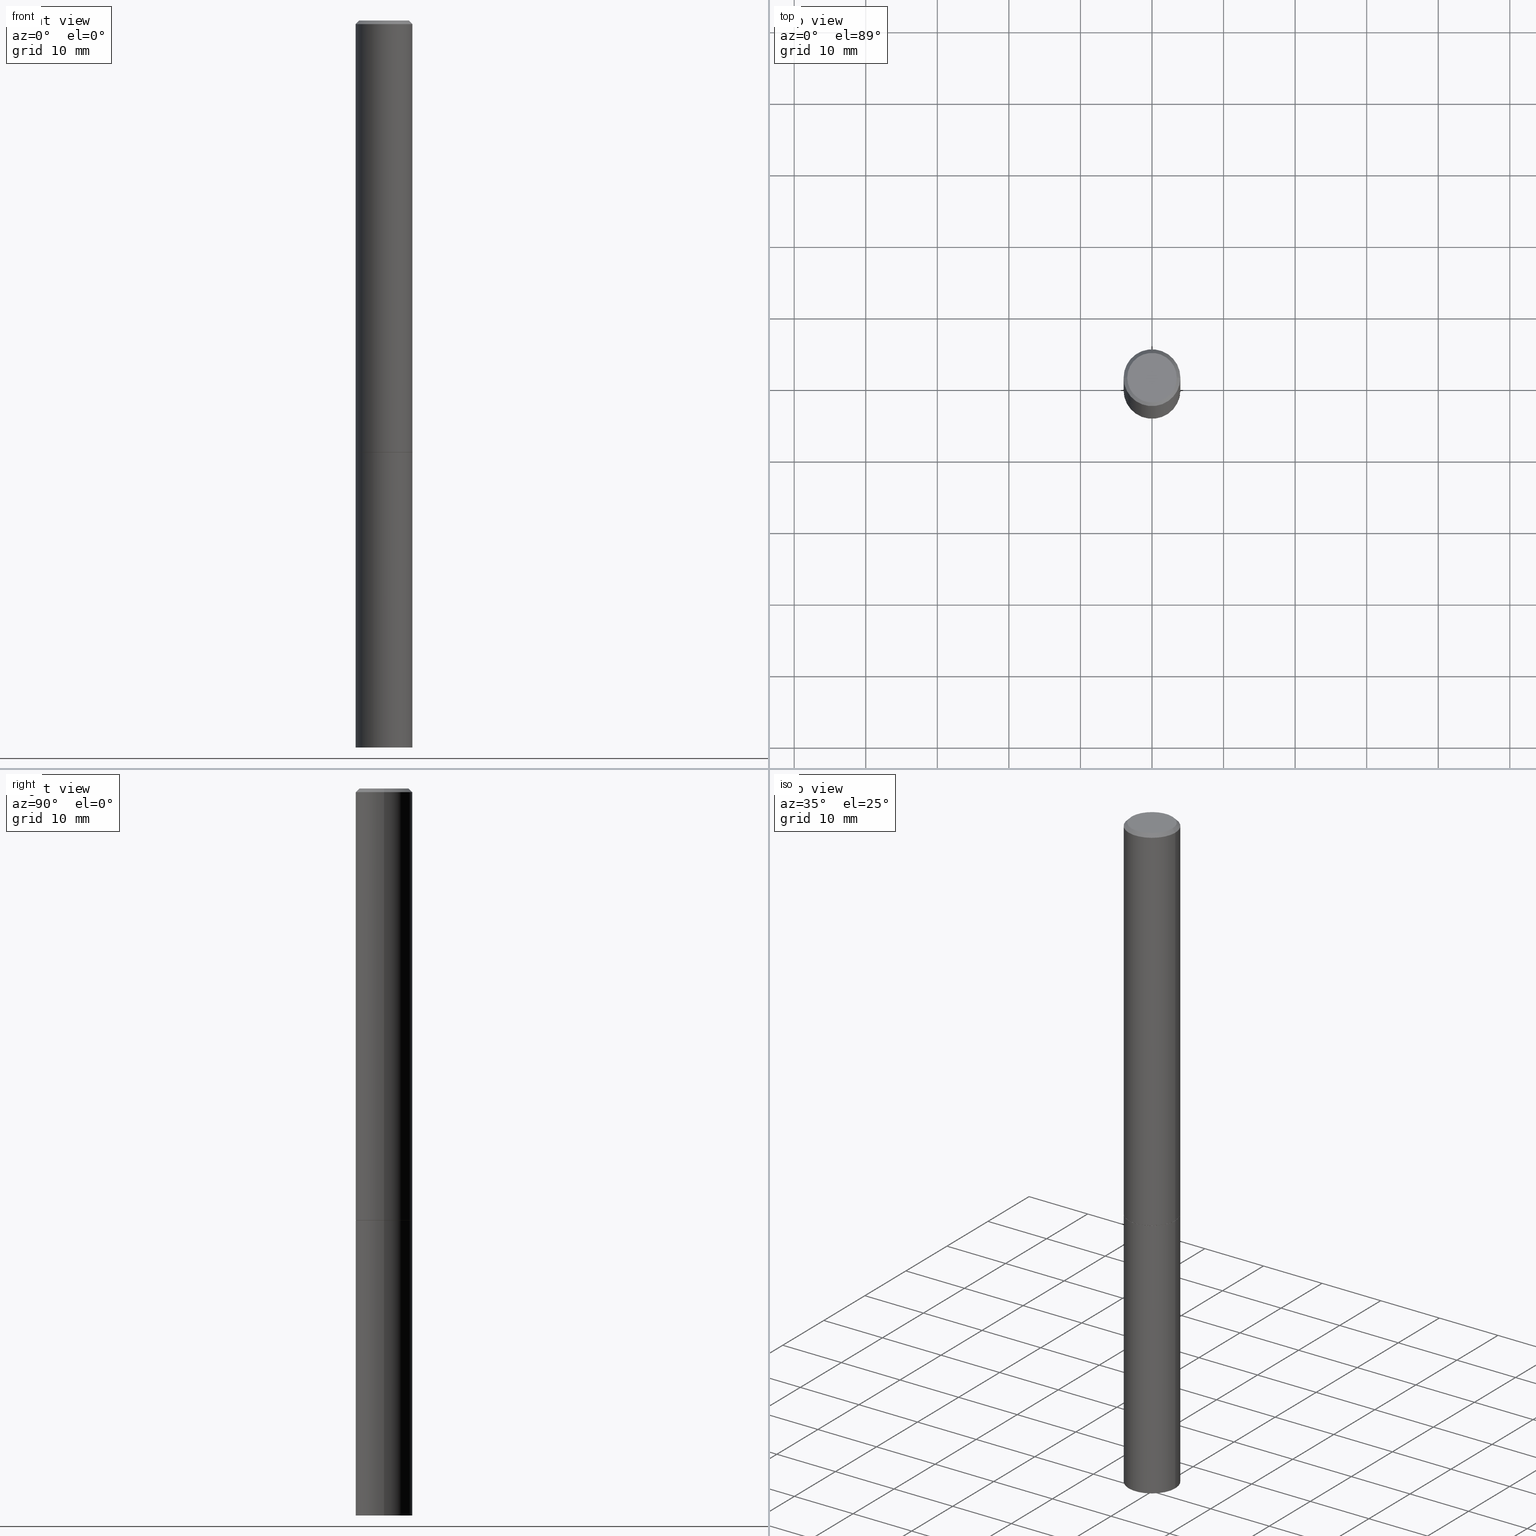
[diagram: canonical four-view strip — front | top / right | iso, engineering-drawing reading convention]
A machine part, canonical four-view strip (front | top / right | iso — engineering-drawing reading convention). The complete STEP part file that produces these views, byte-faithful:
ISO-10303-21;
HEADER;
FILE_DESCRIPTION (( 'STEP AP203' ),
    '1' );
FILE_NAME ('33325.STEP',
    '2024-02-27T15:53:06',
    ( '' ),
    ( '' ),
    'SwSTEP 2.0',
    'SolidWorks 2023',
    '' );
FILE_SCHEMA (( 'CONFIG_CONTROL_DESIGN' ));
ENDSEC;

DATA;
#1 = VECTOR ( 'NONE', #242, 39.37007874015748143 ) ;
#2 = CARTESIAN_POINT ( 'NONE',  ( 5.807988414689699417E-29, -8.292268179752470118E-15, -2.375000000000000000 ) ) ;
#3 = AXIS2_PLACEMENT_3D ( 'NONE', #90, #291, #318 ) ;
#4 = VECTOR ( 'NONE', #180, 39.37007874015748143 ) ;
#5 = CARTESIAN_POINT ( 'NONE',  ( 9.781875224740546387E-29, -1.396592535537258233E-14, -4.000000000000000000 ) ) ;
#6 = ORIENTED_EDGE ( 'NONE', *, *, #12, .F. ) ;
#7 = DIRECTION ( 'NONE',  ( -2.445468806185136597E-29, 3.491481338843145583E-15, 1.000000000000000000 ) ) ;
#8 = DATE_AND_TIME ( #175, #341 ) ;
#9 = FACE_OUTER_BOUND ( 'NONE', #64, .T. ) ;
#10 = CIRCLE ( 'NONE', #57, 0.1552499999999999991 ) ;
#11 = APPROVAL_PERSON_ORGANIZATION ( #114, #360, #198 ) ;
#12 = EDGE_CURVE ( 'NONE', #359, #194, #277, .T. ) ;
#13 = ORIENTED_EDGE ( 'NONE', *, *, #286, .T. ) ;
#14 = FACE_OUTER_BOUND ( 'NONE', #329, .T. ) ;
#15 = VERTEX_POINT ( 'NONE', #248 ) ;
#16 = VECTOR ( 'NONE', #251, 39.37007874015748143 ) ;
#17 = DIRECTION ( 'NONE',  ( -2.445468806185136877E-29, 3.491481338843145188E-15, 1.000000000000000000 ) ) ;
#18 = ORIENTED_EDGE ( 'NONE', *, *, #30, .T. ) ;
#19 = ORIENTED_EDGE ( 'NONE', *, *, #286, .F. ) ;
#20 = PERSON_AND_ORGANIZATION_ROLE ( 'design_supplier' ) ;
#21 = ORIENTED_EDGE ( 'NONE', *, *, #30, .F. ) ;
#22 = APPROVAL_STATUS ( 'not_yet_approved' ) ;
#23 = CARTESIAN_POINT ( 'NONE',  ( 0.1552499999999999991, -9.376373135463264066E-15, -2.375000000000000000 ) ) ;
#24 = EDGE_CURVE ( 'NONE', #120, #305, #95, .T. ) ;
#25 = CARTESIAN_POINT ( 'NONE',  ( -0.1552499999999999991, -7.183852128136692972E-15, -2.375000000000000000 ) ) ;
#26 = DIRECTION ( 'NONE',  ( 2.445468806185136597E-29, -3.491481338843145583E-15, -1.000000000000000000 ) ) ;
#27 = APPROVAL_DATE_TIME ( #138, #81 ) ;
#28 = FACE_OUTER_BOUND ( 'NONE', #187, .T. ) ;
#29 = CONICAL_SURFACE ( 'NONE', #102, 0.1552499999999999991, 0.7853981633974141952 ) ;
#30 = EDGE_CURVE ( 'NONE', #305, #120, #47, .T. ) ;
#31 = DIRECTION ( 'NONE',  ( 2.445468806185136597E-29, -3.491481338843145583E-15, -1.000000000000000000 ) ) ;
#32 = CARTESIAN_POINT ( 'NONE',  ( 0.1562500000000000000, -9.379864616802105495E-15, -2.373999999999999666 ) ) ;
#33 = ORIENTED_EDGE ( 'NONE', *, *, #294, .F. ) ;
#34 = DATE_AND_TIME ( #144, #334 ) ;
#35 = CARTESIAN_POINT ( 'NONE',  ( 0.1562500000000000000, -1.091087918388479174E-15, 7.619026212181150377E-30 ) ) ;
#36 = DIRECTION ( 'NONE',  ( 1.000000000000000000, -6.982962677686266711E-15, 4.876176775795936353E-29 ) ) ;
#37 = DIRECTION ( 'NONE',  ( -2.438088387897960049E-29, 3.491481338843145188E-15, 1.000000000000000000 ) ) ;
#38 = DIRECTION ( 'NONE',  ( -1.000000000000000000, 6.982962677686267499E-15, 0.000000000000000000 ) ) ;
#39 = CYLINDRICAL_SURFACE ( 'NONE', #67, 0.1562499999999998612 ) ;
#40 = ORIENTED_EDGE ( 'NONE', *, *, #83, .T. ) ;
#41 = AXIS2_PLACEMENT_3D ( 'NONE', #330, #296, #61 ) ;
#42 = ORIENTED_EDGE ( 'NONE', *, *, #219, .F. ) ;
#43 = APPROVAL_DATE_TIME ( #68, #197 ) ;
#44 = ORIENTED_EDGE ( 'NONE', *, *, #173, .F. ) ;
#45 = PERSON_AND_ORGANIZATION ( #189, #118 ) ;
#46 = ORIENTED_EDGE ( 'NONE', *, *, #229, .T. ) ;
#47 = CIRCLE ( 'NONE', #321, 0.1362499999999997047 ) ;
#48 = DIRECTION ( 'NONE',  ( -2.445468806185136597E-29, 3.491481338843145583E-15, 1.000000000000000000 ) ) ;
#49 = DIRECTION ( 'NONE',  ( -0.7071067811865232589, 7.493145998870265808E-15, 0.7071067811865715536 ) ) ;
#50 = APPROVAL_STATUS ( 'not_yet_approved' ) ;
#51 = APPROVAL_STATUS ( 'not_yet_approved' ) ;
#52 = PRODUCT_DEFINITION_FORMATION_WITH_SPECIFIED_SOURCE ( 'ANY', '', #345, .NOT_KNOWN. ) ;
#53 = DATE_TIME_ROLE ( 'classification_date' ) ;
#54 = FACE_OUTER_BOUND ( 'NONE', #97, .T. ) ;
#55 = DIRECTION ( 'NONE',  ( 2.438088387897960049E-29, -3.491481338843145188E-15, -1.000000000000000000 ) ) ;
#56 = CIRCLE ( 'NONE', #3, 0.1552499999999999991 ) ;
#57 = AXIS2_PLACEMENT_3D ( 'NONE', #117, #293, #258 ) ;
#58 = CARTESIAN_POINT ( 'NONE',  ( -0.1562500000000000000, -1.001887374293736968E-14, -2.375000000000000000 ) ) ;
#59 = CC_DESIGN_PERSON_AND_ORGANIZATION_ASSIGNMENT ( #162, #167, ( #52 ) ) ;
#60 = CARTESIAN_POINT ( 'NONE',  ( 0.1362499999999997047, -1.038262645562515955E-15, 6.957025900226681062E-30 ) ) ;
#61 = DIRECTION ( 'NONE',  ( -1.000000000000000000, 6.982962677686265922E-15, -4.876176775795935793E-29 ) ) ;
#62 = ADVANCED_FACE ( 'NONE', ( #28 ), #319, .F. ) ;
#63 = CARTESIAN_POINT ( 'NONE',  ( 0.1562500000000000000, -1.505701327376106229E-14, -4.000000000000000000 ) ) ;
#64 = EDGE_LOOP ( 'NONE', ( #21, #66, #99, #217 ) ) ;
#65 = CARTESIAN_POINT ( 'NONE',  ( 0.000000000000000000, 0.000000000000000000, 0.000000000000000000 ) ) ;
#66 = ORIENTED_EDGE ( 'NONE', *, *, #266, .T. ) ;
#67 = AXIS2_PLACEMENT_3D ( 'NONE', #65, #185, #301 ) ;
#68 = DATE_AND_TIME ( #170, #124 ) ;
#69 = ORIENTED_EDGE ( 'NONE', *, *, #129, .T. ) ;
#70 = ADVANCED_FACE ( 'NONE', ( #232 ), #350, .T. ) ;
#71 =( NAMED_UNIT ( * ) SI_UNIT ( $, .STERADIAN. ) SOLID_ANGLE_UNIT ( ) );
#72 = VERTEX_POINT ( 'NONE', #347 ) ;
#73 = PERSON_AND_ORGANIZATION ( #189, #118 ) ;
#74 = CC_DESIGN_PERSON_AND_ORGANIZATION_ASSIGNMENT ( #77, #310, ( #345 ) ) ;
#75 = ORIENTED_EDGE ( 'NONE', *, *, #229, .F. ) ;
#76 = AXIS2_PLACEMENT_3D ( 'NONE', #348, #26, #195 ) ;
#77 = PERSON_AND_ORGANIZATION ( #189, #118 ) ;
#78 = VECTOR ( 'NONE', #210, 39.37007874015748143 ) ;
#79 = DIRECTION ( 'NONE',  ( 1.000000000000000000, -6.982962677686266711E-15, 4.876176775795936353E-29 ) ) ;
#80 = CALENDAR_DATE ( 2024, 27, 2 ) ;
#81 = APPROVAL ( #22, 'UNSPECIFIED' ) ;
#82 = CC_DESIGN_APPROVAL ( #360, ( #325 ) ) ;
#83 = EDGE_CURVE ( 'NONE', #120, #72, #115, .T. ) ;
#84 = DIRECTION ( 'NONE',  ( -2.445468806185136597E-29, 3.491481338843145583E-15, 1.000000000000000000 ) ) ;
#85 = CC_DESIGN_DATE_AND_TIME_ASSIGNMENT ( #313, #252, ( #132 ) ) ;
#86 = DIRECTION ( 'NONE',  ( 1.000000000000000000, -6.982962677686262766E-15, 0.000000000000000000 ) ) ;
#87 = DIRECTION ( 'NONE',  ( -2.445468806185136877E-29, 3.491481338843145188E-15, 1.000000000000000000 ) ) ;
#88 = CIRCLE ( 'NONE', #340, 0.1562500000000000000 ) ;
#89 = LOCAL_TIME ( 10, 53, 6.000000000000000000, #281 ) ;
#90 = CARTESIAN_POINT ( 'NONE',  ( 5.807988414689699417E-29, -8.292268179752470118E-15, -2.375000000000000000 ) ) ;
#91 = CC_DESIGN_PERSON_AND_ORGANIZATION_ASSIGNMENT ( #45, #140, ( #132 ) ) ;
#92 = DIRECTION ( 'NONE',  ( 2.438088387897960049E-29, -3.491481338843145188E-15, -1.000000000000000000 ) ) ;
#93 = EDGE_LOOP ( 'NONE', ( #69, #267, #191, #19 ) ) ;
#94 = LINE ( 'NONE', #328, #158 ) ;
#95 = CIRCLE ( 'NONE', #287, 0.1362499999999997047 ) ;
#96 = CC_DESIGN_DATE_AND_TIME_ASSIGNMENT ( #34, #53, ( #325 ) ) ;
#97 = EDGE_LOOP ( 'NONE', ( #221, #46, #188, #6 ) ) ;
#98 = CARTESIAN_POINT ( 'NONE',  ( 1.091087918388576795E-15, 0.1562499999999860389, -4.000000000000000888 ) ) ;
#99 = ORIENTED_EDGE ( 'NONE', *, *, #269, .T. ) ;
#100 = LINE ( 'NONE', #156, #78 ) ;
#101 = ORIENTED_EDGE ( 'NONE', *, *, #344, .F. ) ;
#102 = AXIS2_PLACEMENT_3D ( 'NONE', #204, #151, #322 ) ;
#103 = EDGE_LOOP ( 'NONE', ( #44, #354 ) ) ;
#104 = CALENDAR_DATE ( 2024, 27, 2 ) ;
#105 = ORIENTED_EDGE ( 'NONE', *, *, #358, .F. ) ;
#106 = CARTESIAN_POINT ( 'NONE',  ( 0.1552499999999999991, -9.376373135463264066E-15, -2.375000000000000000 ) ) ;
#107 = DIRECTION ( 'NONE',  ( -2.445468806185136597E-29, 3.491481338843145583E-15, 1.000000000000000000 ) ) ;
#108 = DIRECTION ( 'NONE',  ( 0.000000000000000000, 0.000000000000000000, 1.000000000000000000 ) ) ;
#109 = CARTESIAN_POINT ( 'NONE',  ( 0.000000000000000000, 0.000000000000000000, 0.000000000000000000 ) ) ;
#110 = DIRECTION ( 'NONE',  ( -2.445468806185136597E-29, 3.491481338843145583E-15, 1.000000000000000000 ) ) ;
#111 = APPROVAL_DATE_TIME ( #8, #360 ) ;
#112 = CC_DESIGN_PERSON_AND_ORGANIZATION_ASSIGNMENT ( #199, #316, ( #325 ) ) ;
#113 = CARTESIAN_POINT ( 'NONE',  ( 9.514286648347515911E-16, 0.1362499999999997047, -4.757143324173775705E-16 ) ) ;
#114 = PERSON_AND_ORGANIZATION ( #189, #118 ) ;
#115 = LINE ( 'NONE', #260, #16 ) ;
#116 = EDGE_CURVE ( 'NONE', #331, #359, #56, .T. ) ;
#117 = CARTESIAN_POINT ( 'NONE',  ( 5.807988414689699417E-29, -8.292268179752470118E-15, -2.375000000000000000 ) ) ;
#118 = ORGANIZATION ( 'UNSPECIFIED', 'UNSPECIFIED', '' ) ;
#119 = DIRECTION ( 'NONE',  ( -2.445468806185136597E-29, 3.491481338843145583E-15, 1.000000000000000000 ) ) ;
#120 = VERTEX_POINT ( 'NONE', #255 ) ;
#121 = ORIENTED_EDGE ( 'NONE', *, *, #292, .F. ) ;
#122 = PLANE ( 'NONE',  #245 ) ;
#123 = AXIS2_PLACEMENT_3D ( 'NONE', #148, #7, #86 ) ;
#124 = LOCAL_TIME ( 10, 53, 6.000000000000000000, #192 ) ;
#125 = EDGE_LOOP ( 'NONE', ( #335, #184 ) ) ;
#126 = CLOSED_SHELL ( 'NONE', ( #70, #280, #312, #262 ) ) ;
#127 = LINE ( 'NONE', #324, #4 ) ;
#128 = ORIENTED_EDGE ( 'NONE', *, *, #231, .F. ) ;
#129 = EDGE_CURVE ( 'NONE', #194, #274, #332, .T. ) ;
#130 = ORIENTED_EDGE ( 'NONE', *, *, #24, .F. ) ;
#131 =( NAMED_UNIT ( * ) PLANE_ANGLE_UNIT ( ) SI_UNIT ( $, .RADIAN. ) );
#132 = PRODUCT_DEFINITION ( 'UNKNOWN', '', #52, #174 ) ;
#133 = ORIENTED_EDGE ( 'NONE', *, *, #219, .T. ) ;
#134 = AXIS2_PLACEMENT_3D ( 'NONE', #247, #110, #143 ) ;
#135 = DIRECTION ( 'NONE',  ( 1.000000000000000000, -6.982962677686262766E-15, 0.000000000000000000 ) ) ;
#136 = DIRECTION ( 'NONE',  ( 0.7071067811865232589, -2.468850131082003836E-15, 0.7071067811865715536 ) ) ;
#137 = ADVANCED_FACE ( 'NONE', ( #365 ), #224, .T. ) ;
#138 = DATE_AND_TIME ( #80, #89 ) ;
#139 = DIRECTION ( 'NONE',  ( 1.000000000000000000, -6.982962677686262766E-15, 0.000000000000000000 ) ) ;
#140 = PERSON_AND_ORGANIZATION_ROLE ( 'creator' ) ;
#141 = CARTESIAN_POINT ( 'NONE',  ( 0.000000000000000000, 0.000000000000000000, 0.000000000000000000 ) ) ;
#142 = AXIS2_PLACEMENT_3D ( 'NONE', #353, #119, #155 ) ;
#143 = DIRECTION ( 'NONE',  ( 1.000000000000000000, -6.982962677686262766E-15, 0.000000000000000000 ) ) ;
#144 = CALENDAR_DATE ( 2024, 27, 2 ) ;
#145 = EDGE_CURVE ( 'NONE', #307, #299, #215, .T. ) ;
#146 = CC_DESIGN_SECURITY_CLASSIFICATION ( #325, ( #52 ) ) ;
#147 = DIRECTION ( 'NONE',  ( 1.000000000000000000, -6.982962677686267499E-15, 0.000000000000000000 ) ) ;
#148 = CARTESIAN_POINT ( 'NONE',  ( 5.807988414689699417E-29, -8.292268179752470118E-15, -2.375000000000000000 ) ) ;
#149 = EDGE_LOOP ( 'NONE', ( #33, #133, #13, #128 ) ) ;
#150 = CC_DESIGN_PERSON_AND_ORGANIZATION_ASSIGNMENT ( #275, #20, ( #52 ) ) ;
#151 = DIRECTION ( 'NONE',  ( -2.445468806185136597E-29, 3.491481338843145583E-15, 1.000000000000000000 ) ) ;
#152 = CARTESIAN_POINT ( 'NONE',  ( 0.1562499999999996947, -1.141782438928662738E-15, -0.02000000000000003164 ) ) ;
#153 = AXIS2_PLACEMENT_3D ( 'NONE', #5, #227, #139 ) ;
#154 = DIMENSIONAL_EXPONENTS ( 1.000000000000000000, 0.000000000000000000, 0.000000000000000000, 0.000000000000000000, 0.000000000000000000, 0.000000000000000000, 0.000000000000000000 ) ;
#155 = DIRECTION ( 'NONE',  ( 1.000000000000000000, -6.982962677686267499E-15, 0.000000000000000000 ) ) ;
#156 = CARTESIAN_POINT ( 'NONE',  ( 0.1562499999999998612, -1.091087918388478187E-15, 7.619026212181143371E-30 ) ) ;
#157 = CONICAL_SURFACE ( 'NONE', #300, 0.1562499999999996947, 0.7853981633974473908 ) ;
#158 = VECTOR ( 'NONE', #17, 39.37007874015748143 ) ;
#159 = ORIENTED_EDGE ( 'NONE', *, *, #116, .T. ) ;
#160 = MANIFOLD_SOLID_BREP ( 'Body-Move/Copy2[1]', #126 ) ;
#161 = ORIENTED_EDGE ( 'NONE', *, *, #207, .T. ) ;
#162 = PERSON_AND_ORGANIZATION ( #189, #118 ) ;
#163 = MANIFOLD_SOLID_BREP ( 'Body-Move/Copy2[2]', #362 ) ;
#164 = ORIENTED_EDGE ( 'NONE', *, *, #207, .F. ) ;
#165 = PERSON_AND_ORGANIZATION ( #189, #118 ) ;
#166 = ORIENTED_EDGE ( 'NONE', *, *, #358, .T. ) ;
#167 = PERSON_AND_ORGANIZATION_ROLE ( 'creator' ) ;
#168 = FACE_OUTER_BOUND ( 'NONE', #149, .T. ) ;
#169 = DIRECTION ( 'NONE',  ( 1.000000000000000000, -6.982962677686268288E-15, 0.000000000000000000 ) ) ;
#170 = CALENDAR_DATE ( 2024, 27, 2 ) ;
#171 = AXIS2_PLACEMENT_3D ( 'NONE', #113, #55, #177 ) ;
#172 = CIRCLE ( 'NONE', #257, 0.1562500000000000000 ) ;
#173 = EDGE_CURVE ( 'NONE', #359, #331, #10, .T. ) ;
#174 = DESIGN_CONTEXT ( 'detailed design', #314, 'design' ) ;
#175 = CALENDAR_DATE ( 2024, 27, 2 ) ;
#176 = CARTESIAN_POINT ( 'NONE',  ( -0.1552499999999999991, -7.189150582484915374E-15, -2.375000000000000000 ) ) ;
#177 = DIRECTION ( 'NONE',  ( -1.000000000000000000, 6.982962677686265922E-15, -4.876176775795935793E-29 ) ) ;
#178 = AXIS2_PLACEMENT_3D ( 'NONE', #323, #282, #179 ) ;
#179 = DIRECTION ( 'NONE',  ( 1.000000000000000000, -6.982962677686262766E-15, 0.000000000000000000 ) ) ;
#180 = DIRECTION ( 'NONE',  ( -2.445468806185136877E-29, 3.491481338843145188E-15, 1.000000000000000000 ) ) ;
#181 = CYLINDRICAL_SURFACE ( 'NONE', #320, 0.1562500000000000000 ) ;
#182 = ADVANCED_FACE ( 'NONE', ( #9 ), #209, .T. ) ;
#183 = CARTESIAN_POINT ( 'NONE',  ( -0.1562500000000000000, -1.001887374293736968E-14, -4.000000000000000000 ) ) ;
#184 = ORIENTED_EDGE ( 'NONE', *, *, #201, .T. ) ;
#185 = DIRECTION ( 'NONE',  ( -2.445468806185136597E-29, 3.491481338843145583E-15, 1.000000000000000000 ) ) ;
#186 = VECTOR ( 'NONE', #136, 39.37007874015748854 ) ;
#187 = EDGE_LOOP ( 'NONE', ( #241, #18 ) ) ;
#188 = ORIENTED_EDGE ( 'NONE', *, *, #129, .F. ) ;
#189 = PERSON ( 'UNSPECIFIED', 'UNSPECIFIED', 'UNSPECIFIED', ('UNSPECIFIED'), ('UNSPECIFIED'), ('UNSPECIFIED') ) ;
#190 = CARTESIAN_POINT ( 'NONE',  ( 9.781875224740546387E-29, -1.396592535537258233E-14, -4.000000000000000000 ) ) ;
#191 = ORIENTED_EDGE ( 'NONE', *, *, #269, .F. ) ;
#192 = COORDINATED_UNIVERSAL_TIME_OFFSET ( 5, 0, .BEHIND. ) ;
#193 = AXIS2_PLACEMENT_3D ( 'NONE', #2, #107, #169 ) ;
#194 = VERTEX_POINT ( 'NONE', #32 ) ;
#195 = DIRECTION ( 'NONE',  ( -1.000000000000000000, 6.982962677686267499E-15, 0.000000000000000000 ) ) ;
#196 = APPROVAL_ROLE ( '' ) ;
#197 = APPROVAL ( #50, 'UNSPECIFIED' ) ;
#198 = APPROVAL_ROLE ( '' ) ;
#199 = PERSON_AND_ORGANIZATION ( #189, #118 ) ;
#200 = FACE_OUTER_BOUND ( 'NONE', #364, .T. ) ;
#201 = EDGE_CURVE ( 'NONE', #214, #363, #263, .T. ) ;
#202 = LINE ( 'NONE', #35, #254 ) ;
#203 = CIRCLE ( 'NONE', #142, 0.1562499999999996947 ) ;
#204 = CARTESIAN_POINT ( 'NONE',  ( 5.807988414689699417E-29, -8.292268179752470118E-15, -2.375000000000000000 ) ) ;
#205 = DIRECTION ( 'NONE',  ( 1.000000000000000000, -6.982962677686266711E-15, 4.876176775795936353E-29 ) ) ;
#206 = UNCERTAINTY_MEASURE_WITH_UNIT (LENGTH_MEASURE( 1.000000000000000082E-05 ), #306, 'distance_accuracy_value', 'NONE');
#207 = EDGE_CURVE ( 'NONE', #299, #363, #202, .T. ) ;
#208 = DIRECTION ( 'NONE',  ( -1.000000000000000000, 6.982962677686265922E-15, -4.876176775795935793E-29 ) ) ;
#209 = CONICAL_SURFACE ( 'NONE', #76, 0.1562499999999996947, 0.7853981633974473908 ) ;
#210 = DIRECTION ( 'NONE',  ( -2.445468806185136877E-29, 3.491481338843145188E-15, 1.000000000000000000 ) ) ;
#211 = ADVANCED_FACE ( 'NONE', ( #54 ), #29, .T. ) ;
#212 = EDGE_LOOP ( 'NONE', ( #105, #246 ) ) ;
#213 = FACE_OUTER_BOUND ( 'NONE', #125, .T. ) ;
#214 = VERTEX_POINT ( 'NONE', #58 ) ;
#215 = CIRCLE ( 'NONE', #153, 0.1562500000000000000 ) ;
#216 = CC_DESIGN_APPROVAL ( #197, ( #52 ) ) ;
#217 = ORIENTED_EDGE ( 'NONE', *, *, #83, .F. ) ;
#218 = ORIENTED_EDGE ( 'NONE', *, *, #231, .T. ) ;
#219 = EDGE_CURVE ( 'NONE', #274, #194, #88, .T. ) ;
#220 = LENGTH_MEASURE_WITH_UNIT ( LENGTH_MEASURE( 0.02539999999999999897 ), #225 );
#221 = ORIENTED_EDGE ( 'NONE', *, *, #173, .T. ) ;
#222 = AXIS2_PLACEMENT_3D ( 'NONE', #311, #84, #147 ) ;
#223 = DIRECTION ( 'NONE',  ( -2.445468806185136597E-29, 3.491481338843145583E-15, 1.000000000000000000 ) ) ;
#224 = CONICAL_SURFACE ( 'NONE', #193, 0.1552499999999999991, 0.7853981633974141952 ) ;
#225 =( LENGTH_UNIT ( ) NAMED_UNIT ( * ) SI_UNIT ( $, .METRE. ) );
#226 = ADVANCED_FACE ( 'NONE', ( #168 ), #279, .T. ) ;
#227 = DIRECTION ( 'NONE',  ( -2.445468806185136597E-29, 3.491481338843145583E-15, 1.000000000000000000 ) ) ;
#228 = COORDINATED_UNIVERSAL_TIME_OFFSET ( 5, 0, .BEHIND. ) ;
#229 = EDGE_CURVE ( 'NONE', #331, #274, #346, .T. ) ;
#230 = APPROVAL_PERSON_ORGANIZATION ( #165, #81, #196 ) ;
#231 = EDGE_CURVE ( 'NONE', #72, #15, #295, .T. ) ;
#232 = FACE_OUTER_BOUND ( 'NONE', #303, .T. ) ;
#233 = DIRECTION ( 'NONE',  ( -2.445468806185136597E-29, 3.491481338843145583E-15, 1.000000000000000000 ) ) ;
#234 = DIRECTION ( 'NONE',  ( 1.000000000000000000, -6.982962677686262766E-15, 0.000000000000000000 ) ) ;
#235 = CARTESIAN_POINT ( 'NONE',  ( -0.1562500000000000000, -3.069080137970085114E-15, -2.373999999999999666 ) ) ;
#236 = CARTESIAN_POINT ( 'NONE',  ( 5.807988414689699417E-29, -8.292268179752470118E-15, -2.375000000000000000 ) ) ;
#237 = DIRECTION ( 'NONE',  ( 1.000000000000000000, -6.982962677686265922E-15, 4.876176775795935793E-29 ) ) ;
#238 = APPROVAL_PERSON_ORGANIZATION ( #73, #197, #250 ) ;
#239 = DIRECTION ( 'NONE',  ( -2.445468806185136597E-29, 3.491481338843145583E-15, 1.000000000000000000 ) ) ;
#240 = PRODUCT_RELATED_PRODUCT_CATEGORY ( 'detail', '', ( #345 ) ) ;
#241 = ORIENTED_EDGE ( 'NONE', *, *, #24, .T. ) ;
#242 = DIRECTION ( 'NONE',  ( 0.7071067811865469066, -7.319954787623254468E-15, -0.7071067811865482389 ) ) ;
#243 = ORIENTED_EDGE ( 'NONE', *, *, #12, .T. ) ;
#244 = SECURITY_CLASSIFICATION_LEVEL ( 'unclassified' ) ;
#245 = AXIS2_PLACEMENT_3D ( 'NONE', #236, #37, #237 ) ;
#246 = ORIENTED_EDGE ( 'NONE', *, *, #145, .F. ) ;
#247 = CARTESIAN_POINT ( 'NONE',  ( 5.807988414689699417E-29, -8.292268179752470118E-15, -2.375000000000000000 ) ) ;
#248 = CARTESIAN_POINT ( 'NONE',  ( 0.1562499999999996947, -1.141782438928662738E-15, -0.02000000000000003164 ) ) ;
#249 = ADVANCED_FACE ( 'NONE', ( #200 ), #157, .T. ) ;
#250 = APPROVAL_ROLE ( '' ) ;
#251 = DIRECTION ( 'NONE',  ( -0.7071067811865469066, 2.468850131082249961E-15, -0.7071067811865482389 ) ) ;
#252 = DATE_TIME_ROLE ( 'creation_date' ) ;
#253 = ADVANCED_FACE ( 'NONE', ( #265 ), #122, .F. ) ;
#254 = VECTOR ( 'NONE', #87, 39.37007874015748143 ) ;
#255 = CARTESIAN_POINT ( 'NONE',  ( -0.1362499999999997047, 9.863434782231830429E-16, -6.775751096333125871E-30 ) ) ;
#256 = AXIS2_PLACEMENT_3D ( 'NONE', #304, #108, #283 ) ;
#257 = AXIS2_PLACEMENT_3D ( 'NONE', #190, #308, #135 ) ;
#258 = DIRECTION ( 'NONE',  ( 1.000000000000000000, -6.982962677686268288E-15, 0.000000000000000000 ) ) ;
#259 = APPLICATION_CONTEXT ( 'configuration controlled 3d designs of mechanical parts and assemblies' ) ;
#260 = CARTESIAN_POINT ( 'NONE',  ( -0.1562499999999996947, 1.021258291611614100E-15, -0.02000000000000003164 ) ) ;
#261 = CARTESIAN_POINT ( 'NONE',  ( 5.805542945883513814E-29, -8.288776698413627111E-15, -2.373999999999999666 ) ) ;
#262 = ADVANCED_FACE ( 'NONE', ( #14 ), #181, .T. ) ;
#263 = CIRCLE ( 'NONE', #123, 0.1562500000000000000 ) ;
#264 =( GEOMETRIC_REPRESENTATION_CONTEXT ( 3 ) GLOBAL_UNCERTAINTY_ASSIGNED_CONTEXT ( ( #206 ) ) GLOBAL_UNIT_ASSIGNED_CONTEXT ( ( #306, #131, #71 ) ) REPRESENTATION_CONTEXT ( 'NONE', 'WORKASPACE' ) );
#265 = FACE_OUTER_BOUND ( 'NONE', #103, .T. ) ;
#266 = EDGE_CURVE ( 'NONE', #305, #15, #297, .T. ) ;
#267 = ORIENTED_EDGE ( 'NONE', *, *, #294, .T. ) ;
#268 = CARTESIAN_POINT ( 'NONE',  ( 0.000000000000000000, 0.000000000000000000, 0.000000000000000000 ) ) ;
#269 = EDGE_CURVE ( 'NONE', #15, #72, #203, .T. ) ;
#270 = CARTESIAN_POINT ( 'NONE',  ( 0.000000000000000000, 0.000000000000000000, 0.000000000000000000 ) ) ;
#271 = AXIS2_PLACEMENT_3D ( 'NONE', #109, #223, #79 ) ;
#272 = AXIS2_PLACEMENT_3D ( 'NONE', #141, #233, #205 ) ;
#273 = ORIENTED_EDGE ( 'NONE', *, *, #266, .F. ) ;
#274 = VERTEX_POINT ( 'NONE', #235 ) ;
#275 = PERSON_AND_ORGANIZATION ( #189, #118 ) ;
#276 = EDGE_LOOP ( 'NONE', ( #75, #159, #243, #42 ) ) ;
#277 = LINE ( 'NONE', #23, #186 ) ;
#278 = APPLICATION_PROTOCOL_DEFINITION ( 'international standard', 'config_control_design', 1994, #314 ) ;
#279 = CYLINDRICAL_SURFACE ( 'NONE', #271, 0.1562499999999998612 ) ;
#280 = ADVANCED_FACE ( 'NONE', ( #357 ), #351, .T. ) ;
#281 = COORDINATED_UNIVERSAL_TIME_OFFSET ( 5, 0, .BEHIND. ) ;
#282 = DIRECTION ( 'NONE',  ( -2.445468806185136597E-29, 3.491481338843145583E-15, 1.000000000000000000 ) ) ;
#283 = DIRECTION ( 'NONE',  ( 1.000000000000000000, 0.000000000000000000, 0.000000000000000000 ) ) ;
#284 = CIRCLE ( 'NONE', #134, 0.1562500000000000000 ) ;
#285 = CARTESIAN_POINT ( 'NONE',  ( 4.890937612370280165E-31, -6.982962677686301470E-17, -0.02000000000000003164 ) ) ;
#286 = EDGE_CURVE ( 'NONE', #194, #15, #100, .T. ) ;
#287 = AXIS2_PLACEMENT_3D ( 'NONE', #339, #48, #309 ) ;
#288 = LOCAL_TIME ( 10, 53, 6.000000000000000000, #333 ) ;
#289 = SHAPE_DEFINITION_REPRESENTATION ( #315, #317 ) ;
#290 = VECTOR ( 'NONE', #49, 39.37007874015748854 ) ;
#291 = DIRECTION ( 'NONE',  ( -2.445468806185136597E-29, 3.491481338843145583E-15, 1.000000000000000000 ) ) ;
#292 = EDGE_CURVE ( 'NONE', #307, #214, #94, .T. ) ;
#293 = DIRECTION ( 'NONE',  ( -2.445468806185136597E-29, 3.491481338843145583E-15, 1.000000000000000000 ) ) ;
#294 = EDGE_CURVE ( 'NONE', #274, #72, #127, .T. ) ;
#295 = CIRCLE ( 'NONE', #222, 0.1562499999999996947 ) ;
#296 = DIRECTION ( 'NONE',  ( 2.438088387897960049E-29, -3.491481338843145188E-15, -1.000000000000000000 ) ) ;
#297 = LINE ( 'NONE', #152, #1 ) ;
#298 = FACE_OUTER_BOUND ( 'NONE', #93, .T. ) ;
#299 = VERTEX_POINT ( 'NONE', #63 ) ;
#300 = AXIS2_PLACEMENT_3D ( 'NONE', #285, #31, #38 ) ;
#301 = DIRECTION ( 'NONE',  ( 1.000000000000000000, -6.982962677686266711E-15, 4.876176775795936353E-29 ) ) ;
#302 = CC_DESIGN_APPROVAL ( #81, ( #132 ) ) ;
#303 = EDGE_LOOP ( 'NONE', ( #166, #361, #101, #164 ) ) ;
#304 = CARTESIAN_POINT ( 'NONE',  ( 0.000000000000000000, 0.000000000000000000, 0.000000000000000000 ) ) ;
#305 = VERTEX_POINT ( 'NONE', #60 ) ;
#306 =( CONVERSION_BASED_UNIT ( 'INCH', #220 ) LENGTH_UNIT ( ) NAMED_UNIT ( #154 ) );
#307 = VERTEX_POINT ( 'NONE', #183 ) ;
#308 = DIRECTION ( 'NONE',  ( -2.445468806185136597E-29, 3.491481338843145583E-15, 1.000000000000000000 ) ) ;
#309 = DIRECTION ( 'NONE',  ( 1.000000000000000000, -6.982962677686266711E-15, 4.876176775795936353E-29 ) ) ;
#310 = PERSON_AND_ORGANIZATION_ROLE ( 'design_owner' ) ;
#311 = CARTESIAN_POINT ( 'NONE',  ( 4.890937612370280165E-31, -6.982962677686301470E-17, -0.02000000000000003164 ) ) ;
#312 = ADVANCED_FACE ( 'NONE', ( #213 ), #326, .F. ) ;
#313 = DATE_AND_TIME ( #104, #288 ) ;
#314 = APPLICATION_CONTEXT ( 'configuration controlled 3d designs of mechanical parts and assemblies' ) ;
#315 = PRODUCT_DEFINITION_SHAPE ( 'NONE', 'NONE',  #132 ) ;
#316 = PERSON_AND_ORGANIZATION_ROLE ( 'classification_officer' ) ;
#317 = ADVANCED_BREP_SHAPE_REPRESENTATION ( '33325', ( #160, #163, #256 ), #264 ) ;
#318 = DIRECTION ( 'NONE',  ( 1.000000000000000000, -6.982962677686268288E-15, 0.000000000000000000 ) ) ;
#319 = PLANE ( 'NONE',  #171 ) ;
#320 = AXIS2_PLACEMENT_3D ( 'NONE', #268, #355, #36 ) ;
#321 = AXIS2_PLACEMENT_3D ( 'NONE', #270, #239, #356 ) ;
#322 = DIRECTION ( 'NONE',  ( 1.000000000000000000, -6.982962677686268288E-15, 0.000000000000000000 ) ) ;
#323 = CARTESIAN_POINT ( 'NONE',  ( 5.805542945883513814E-29, -8.288776698413627111E-15, -2.373999999999999666 ) ) ;
#324 = CARTESIAN_POINT ( 'NONE',  ( -0.1562499999999998612, 1.110223024625155554E-15, -7.685836078523284153E-30 ) ) ;
#325 = SECURITY_CLASSIFICATION ( '', '', #244 ) ;
#326 = PLANE ( 'NONE',  #41 ) ;
#327 = ADVANCED_FACE ( 'NONE', ( #298 ), #39, .T. ) ;
#328 = CARTESIAN_POINT ( 'NONE',  ( -0.1562500000000000000, 1.110223024625156540E-15, -7.685836078523291160E-30 ) ) ;
#329 = EDGE_LOOP ( 'NONE', ( #121, #352, #161, #337 ) ) ;
#330 = CARTESIAN_POINT ( 'NONE',  ( 1.091087918388537155E-15, 0.1562499999999917011, -2.375000000000000444 ) ) ;
#331 = VERTEX_POINT ( 'NONE', #25 ) ;
#332 = CIRCLE ( 'NONE', #178, 0.1562500000000000000 ) ;
#333 = COORDINATED_UNIVERSAL_TIME_OFFSET ( 5, 0, .BEHIND. ) ;
#334 = LOCAL_TIME ( 10, 53, 6.000000000000000000, #343 ) ;
#335 = ORIENTED_EDGE ( 'NONE', *, *, #344, .T. ) ;
#336 = MECHANICAL_CONTEXT ( 'NONE', #259, 'mechanical' ) ;
#337 = ORIENTED_EDGE ( 'NONE', *, *, #201, .F. ) ;
#338 = APPLICATION_PROTOCOL_DEFINITION ( 'international standard', 'config_control_design', 1994, #259 ) ;
#339 = CARTESIAN_POINT ( 'NONE',  ( 0.000000000000000000, 0.000000000000000000, 0.000000000000000000 ) ) ;
#340 = AXIS2_PLACEMENT_3D ( 'NONE', #261, #342, #234 ) ;
#341 = LOCAL_TIME ( 10, 53, 6.000000000000000000, #228 ) ;
#342 = DIRECTION ( 'NONE',  ( -2.445468806185136597E-29, 3.491481338843145583E-15, 1.000000000000000000 ) ) ;
#343 = COORDINATED_UNIVERSAL_TIME_OFFSET ( 5, 0, .BEHIND. ) ;
#344 = EDGE_CURVE ( 'NONE', #363, #214, #284, .T. ) ;
#345 = PRODUCT ( '33325', '33325', '', ( #336 ) ) ;
#346 = LINE ( 'NONE', #176, #290 ) ;
#347 = CARTESIAN_POINT ( 'NONE',  ( -0.1562499999999996947, 1.021258291611614100E-15, -0.02000000000000003164 ) ) ;
#348 = CARTESIAN_POINT ( 'NONE',  ( 4.890937612370280165E-31, -6.982962677686301470E-17, -0.02000000000000003164 ) ) ;
#349 = AXIS2_PLACEMENT_3D ( 'NONE', #98, #92, #208 ) ;
#350 = CYLINDRICAL_SURFACE ( 'NONE', #272, 0.1562500000000000000 ) ;
#351 = PLANE ( 'NONE',  #349 ) ;
#352 = ORIENTED_EDGE ( 'NONE', *, *, #145, .T. ) ;
#353 = CARTESIAN_POINT ( 'NONE',  ( 4.890937612370280165E-31, -6.982962677686301470E-17, -0.02000000000000003164 ) ) ;
#354 = ORIENTED_EDGE ( 'NONE', *, *, #116, .F. ) ;
#355 = DIRECTION ( 'NONE',  ( -2.445468806185136597E-29, 3.491481338843145583E-15, 1.000000000000000000 ) ) ;
#356 = DIRECTION ( 'NONE',  ( 1.000000000000000000, -6.982962677686266711E-15, 4.876176775795936353E-29 ) ) ;
#357 = FACE_OUTER_BOUND ( 'NONE', #212, .T. ) ;
#358 = EDGE_CURVE ( 'NONE', #299, #307, #172, .T. ) ;
#359 = VERTEX_POINT ( 'NONE', #106 ) ;
#360 = APPROVAL ( #51, 'UNSPECIFIED' ) ;
#361 = ORIENTED_EDGE ( 'NONE', *, *, #292, .T. ) ;
#362 = CLOSED_SHELL ( 'NONE', ( #211, #327, #182, #249, #226, #137, #253, #62 ) ) ;
#363 = VERTEX_POINT ( 'NONE', #366 ) ;
#364 = EDGE_LOOP ( 'NONE', ( #273, #130, #40, #218 ) ) ;
#365 = FACE_OUTER_BOUND ( 'NONE', #276, .T. ) ;
#366 = CARTESIAN_POINT ( 'NONE',  ( 0.1562500000000000000, -9.383356098140948502E-15, -2.375000000000000000 ) ) ;
ENDSEC;
END-ISO-10303-21;
